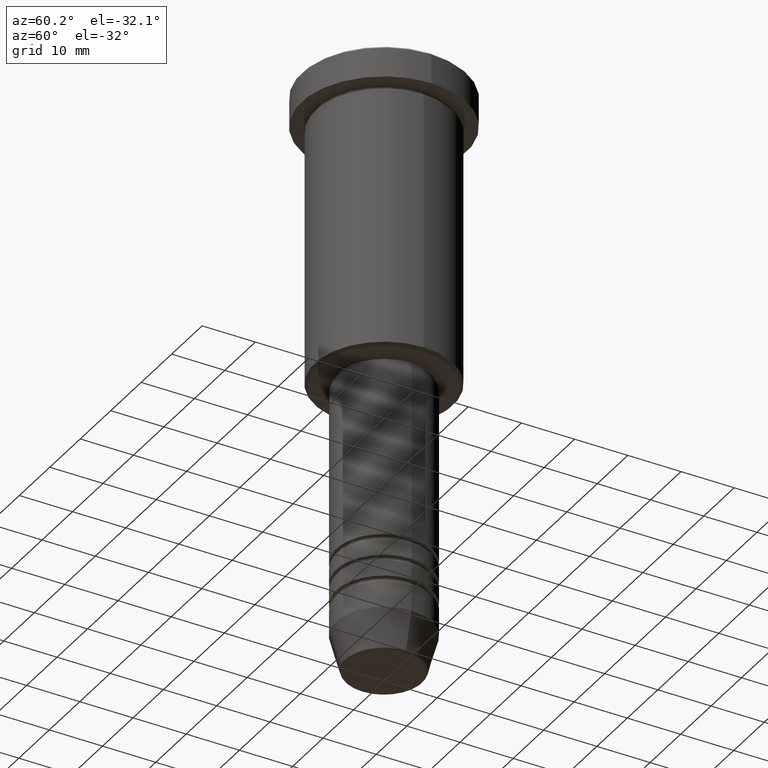
[diagram: clean part render]
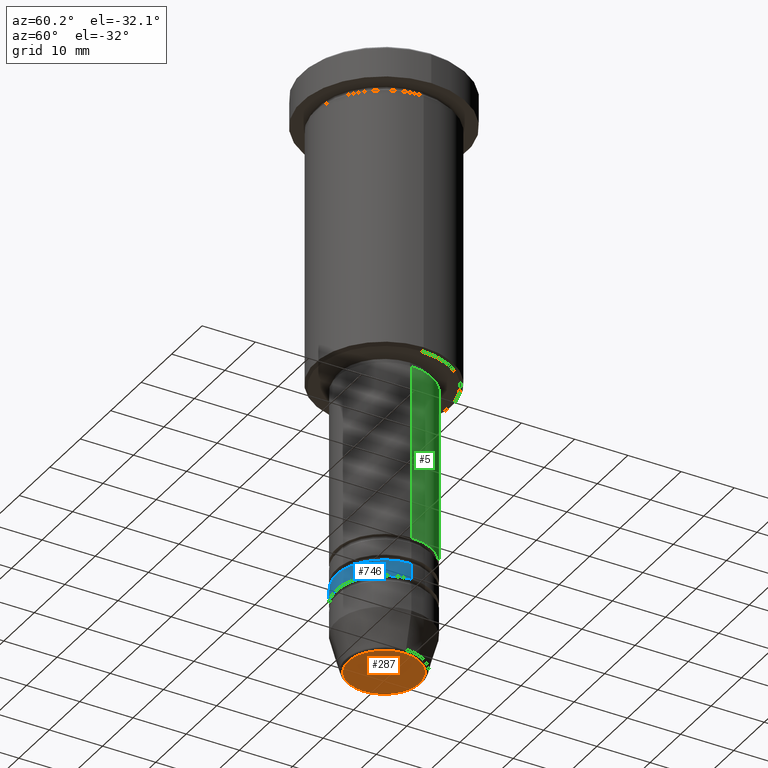
[diagram: same view with three faces highlighted in distinct colors, each labeled with its STEP entity id]
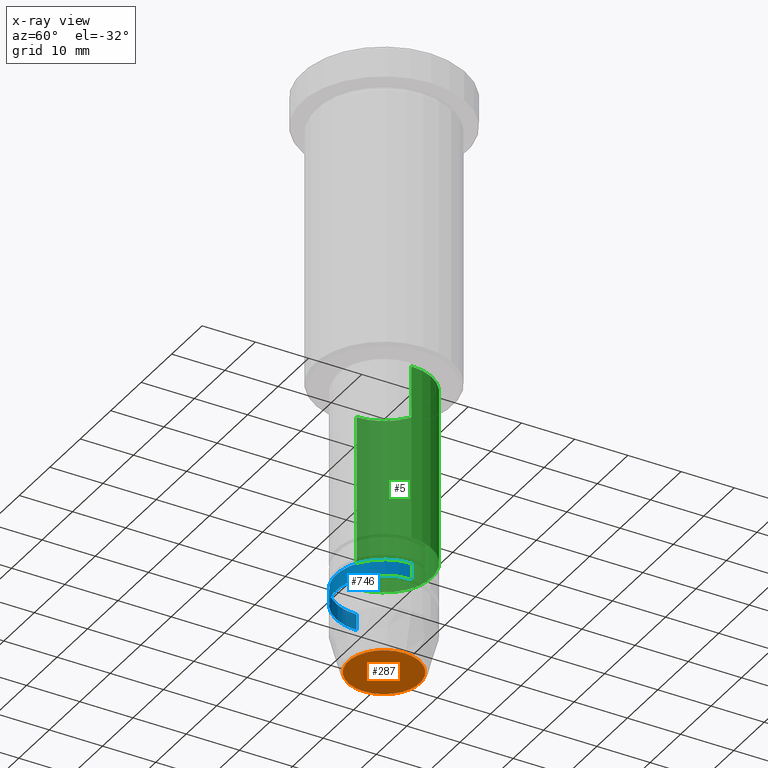
[diagram: x-ray of the same camera — body ghosted, the three highlighted faces saturated]
A machine part, auxiliary view with three faces highlighted in distinct colors.
The next image is the same camera in x-ray (body ghosted, the three faces saturated) — at least one of them is partly hidden behind the body in this view.
Their STEP definitions:

[orange] entity #287 — the highlighted planar face has unit normal (0, -0, 1).
#101 = DIRECTION ( 'NONE',  ( 1.000000000000000000, 0.000000000000000000, 0.000000000000000000 ) ) ;
#107 = DIRECTION ( 'NONE',  ( 0.000000000000000000, 0.000000000000000000, -1.000000000000000000 ) ) ;
#130 = EDGE_CURVE ( 'NONE', #683, #419, #495, .T. ) ;
#220 = AXIS2_PLACEMENT_3D ( 'NONE', #561, #1183, #101 ) ;
#285 = ORIENTED_EDGE ( 'NONE', *, *, #130, .T. ) ;
#287 = ADVANCED_FACE ( 'NONE', ( #943 ), #492, .F. ) ;
#292 = CARTESIAN_POINT ( 'NONE',  ( -6.740692158992653837, 8.550696569392682723E-16, -111.0000000000000142 ) ) ;
#419 = VERTEX_POINT ( 'NONE', #888 ) ;
#492 = PLANE ( 'NONE',  #1083 ) ;
#495 = CIRCLE ( 'NONE', #1143, 6.740692158992653837 ) ;
#526 = CIRCLE ( 'NONE', #220, 6.740692158992653837 ) ;
#561 = CARTESIAN_POINT ( 'NONE',  ( 0.000000000000000000, 0.000000000000000000, -111.0000000000000142 ) ) ;
#584 = DIRECTION ( 'NONE',  ( 0.000000000000000000, -0.000000000000000000, 1.000000000000000000 ) ) ;
#683 = VERTEX_POINT ( 'NONE', #292 ) ;
#713 = EDGE_LOOP ( 'NONE', ( #1047, #285 ) ) ;
#752 = CARTESIAN_POINT ( 'NONE',  ( 0.000000000000000000, 0.000000000000000000, -111.0000000000000142 ) ) ;
#888 = CARTESIAN_POINT ( 'NONE',  ( 6.740692158992653837, 0.000000000000000000, -111.0000000000000142 ) ) ;
#919 = CARTESIAN_POINT ( 'NONE',  ( 0.000000000000000000, 0.000000000000000000, -111.0000000000000142 ) ) ;
#937 = DIRECTION ( 'NONE',  ( 1.000000000000000000, 0.000000000000000000, 0.000000000000000000 ) ) ;
#943 = FACE_OUTER_BOUND ( 'NONE', #713, .T. ) ;
#1047 = ORIENTED_EDGE ( 'NONE', *, *, #1154, .T. ) ;
#1083 = AXIS2_PLACEMENT_3D ( 'NONE', #752, #584, #937 ) ;
#1101 = DIRECTION ( 'NONE',  ( 1.000000000000000000, 0.000000000000000000, 0.000000000000000000 ) ) ;
#1143 = AXIS2_PLACEMENT_3D ( 'NONE', #919, #107, #1101 ) ;
#1154 = EDGE_CURVE ( 'NONE', #419, #683, #526, .T. ) ;
#1183 = DIRECTION ( 'NONE',  ( 0.000000000000000000, 0.000000000000000000, -1.000000000000000000 ) ) ;

[blue] entity #746 — the highlighted cylindrical surface (partial cylindrical patch) has radius 9 mm, axis along (-0, -0, 1).
#44 = DIRECTION ( 'NONE',  ( -0.000000000000000000, -0.000000000000000000, 1.000000000000000000 ) ) ;
#127 = CARTESIAN_POINT ( 'NONE',  ( 9.000000000000001776, 0.000000000000000000, 0.000000000000000000 ) ) ;
#137 = ORIENTED_EDGE ( 'NONE', *, *, #381, .F. ) ;
#197 = CARTESIAN_POINT ( 'NONE',  ( 0.000000000000000000, 0.000000000000000000, 0.000000000000000000 ) ) ;
#280 = CARTESIAN_POINT ( 'NONE',  ( -9.000000000000001776, 1.102182119232617911E-15, -97.99999999999988631 ) ) ;
#312 = AXIS2_PLACEMENT_3D ( 'NONE', #583, #44, #930 ) ;
#328 = CARTESIAN_POINT ( 'NONE',  ( 9.000000000000000000, 0.000000000000000000, -94.99999999999988631 ) ) ;
#336 = VECTOR ( 'NONE', #856, 1000.000000000000000 ) ;
#338 = LINE ( 'NONE', #435, #1105 ) ;
#381 = EDGE_CURVE ( 'NONE', #494, #1179, #338, .T. ) ;
#391 = DIRECTION ( 'NONE',  ( -0.000000000000000000, -0.000000000000000000, 1.000000000000000000 ) ) ;
#435 = CARTESIAN_POINT ( 'NONE',  ( -9.000000000000001776, 1.102182119232617911E-15, 0.000000000000000000 ) ) ;
#463 = VERTEX_POINT ( 'NONE', #603 ) ;
#494 = VERTEX_POINT ( 'NONE', #280 ) ;
#506 = AXIS2_PLACEMENT_3D ( 'NONE', #197, #391, #1118 ) ;
#566 = DIRECTION ( 'NONE',  ( -0.000000000000000000, -0.000000000000000000, 1.000000000000000000 ) ) ;
#583 = CARTESIAN_POINT ( 'NONE',  ( 0.000000000000000000, 0.000000000000000000, -94.99999999999988631 ) ) ;
#603 = CARTESIAN_POINT ( 'NONE',  ( 9.000000000000001776, 0.000000000000000000, -97.99999999999988631 ) ) ;
#641 = EDGE_CURVE ( 'NONE', #463, #944, #1110, .T. ) ;
#646 = CARTESIAN_POINT ( 'NONE',  ( -9.000000000000000000, 1.102182119232617714E-15, -94.99999999999988631 ) ) ;
#652 = FACE_OUTER_BOUND ( 'NONE', #658, .T. ) ;
#658 = EDGE_LOOP ( 'NONE', ( #137, #707, #1035, #789 ) ) ;
#699 = EDGE_CURVE ( 'NONE', #494, #463, #1073, .T. ) ;
#707 = ORIENTED_EDGE ( 'NONE', *, *, #699, .T. ) ;
#715 = EDGE_CURVE ( 'NONE', #1179, #944, #747, .T. ) ;
#746 = ADVANCED_FACE ( 'NONE', ( #652 ), #1016, .T. ) ;
#747 = CIRCLE ( 'NONE', #312, 9.000000000000000000 ) ;
#789 = ORIENTED_EDGE ( 'NONE', *, *, #715, .F. ) ;
#849 = CARTESIAN_POINT ( 'NONE',  ( 0.000000000000000000, 0.000000000000000000, -97.99999999999988631 ) ) ;
#856 = DIRECTION ( 'NONE',  ( -0.000000000000000000, -0.000000000000000000, 1.000000000000000000 ) ) ;
#930 = DIRECTION ( 'NONE',  ( 1.000000000000000000, 0.000000000000000000, 0.000000000000000000 ) ) ;
#944 = VERTEX_POINT ( 'NONE', #328 ) ;
#1016 = CYLINDRICAL_SURFACE ( 'NONE', #506, 9.000000000000001776 ) ;
#1035 = ORIENTED_EDGE ( 'NONE', *, *, #641, .T. ) ;
#1062 = DIRECTION ( 'NONE',  ( -0.000000000000000000, -0.000000000000000000, 1.000000000000000000 ) ) ;
#1073 = CIRCLE ( 'NONE', #1111, 9.000000000000001776 ) ;
#1105 = VECTOR ( 'NONE', #1062, 1000.000000000000000 ) ;
#1110 = LINE ( 'NONE', #127, #336 ) ;
#1111 = AXIS2_PLACEMENT_3D ( 'NONE', #849, #566, #1129 ) ;
#1118 = DIRECTION ( 'NONE',  ( 1.000000000000000000, 0.000000000000000000, 0.000000000000000000 ) ) ;
#1129 = DIRECTION ( 'NONE',  ( 1.000000000000000000, 0.000000000000000000, 0.000000000000000000 ) ) ;
#1179 = VERTEX_POINT ( 'NONE', #646 ) ;

[green] entity #5 — the highlighted cylindrical surface (partial cylindrical patch) has radius 9 mm, axis along (-0, -0, 1).
#5 = ADVANCED_FACE ( 'NONE', ( #60 ), #687, .T. ) ;
#7 = CARTESIAN_POINT ( 'NONE',  ( 9.000000000000000000, 0.000000000000000000, 0.000000000000000000 ) ) ;
#17 = VECTOR ( 'NONE', #548, 1000.000000000000000 ) ;
#50 = AXIS2_PLACEMENT_3D ( 'NONE', #323, #680, #421 ) ;
#60 = FACE_OUTER_BOUND ( 'NONE', #221, .T. ) ;
#63 = VERTEX_POINT ( 'NONE', #1005 ) ;
#67 = CIRCLE ( 'NONE', #50, 8.999999999999998224 ) ;
#80 = ORIENTED_EDGE ( 'NONE', *, *, #155, .T. ) ;
#116 = DIRECTION ( 'NONE',  ( -0.000000000000000000, -0.000000000000000000, 1.000000000000000000 ) ) ;
#155 = EDGE_CURVE ( 'NONE', #375, #818, #1081, .T. ) ;
#158 = DIRECTION ( 'NONE',  ( -0.000000000000000000, -0.000000000000000000, 1.000000000000000000 ) ) ;
#216 = CARTESIAN_POINT ( 'NONE',  ( 0.000000000000000000, 0.000000000000000000, -89.99999999999990052 ) ) ;
#221 = EDGE_LOOP ( 'NONE', ( #602, #80, #926, #631 ) ) ;
#229 = VERTEX_POINT ( 'NONE', #1040 ) ;
#323 = CARTESIAN_POINT ( 'NONE',  ( 0.000000000000000000, 0.000000000000000000, -56.99999999999998579 ) ) ;
#375 = VERTEX_POINT ( 'NONE', #864 ) ;
#409 = CARTESIAN_POINT ( 'NONE',  ( -8.999999999999998224, 1.102182119232617714E-15, -56.99999999999998579 ) ) ;
#421 = DIRECTION ( 'NONE',  ( 1.000000000000000000, 0.000000000000000000, 0.000000000000000000 ) ) ;
#450 = DIRECTION ( 'NONE',  ( -0.000000000000000000, -0.000000000000000000, 1.000000000000000000 ) ) ;
#537 = DIRECTION ( 'NONE',  ( 1.000000000000000000, 0.000000000000000000, 0.000000000000000000 ) ) ;
#548 = DIRECTION ( 'NONE',  ( -0.000000000000000000, -0.000000000000000000, 1.000000000000000000 ) ) ;
#575 = EDGE_CURVE ( 'NONE', #229, #63, #1090, .T. ) ;
#602 = ORIENTED_EDGE ( 'NONE', *, *, #628, .T. ) ;
#624 = CARTESIAN_POINT ( 'NONE',  ( 0.000000000000000000, 0.000000000000000000, 0.000000000000000000 ) ) ;
#628 = EDGE_CURVE ( 'NONE', #229, #375, #694, .T. ) ;
#631 = ORIENTED_EDGE ( 'NONE', *, *, #575, .F. ) ;
#680 = DIRECTION ( 'NONE',  ( -0.000000000000000000, -0.000000000000000000, 1.000000000000000000 ) ) ;
#687 = CYLINDRICAL_SURFACE ( 'NONE', #1044, 9.000000000000000000 ) ;
#694 = CIRCLE ( 'NONE', #844, 9.000000000000001776 ) ;
#758 = VECTOR ( 'NONE', #450, 1000.000000000000000 ) ;
#782 = EDGE_CURVE ( 'NONE', #63, #818, #67, .T. ) ;
#818 = VERTEX_POINT ( 'NONE', #409 ) ;
#844 = AXIS2_PLACEMENT_3D ( 'NONE', #216, #116, #936 ) ;
#864 = CARTESIAN_POINT ( 'NONE',  ( -9.000000000000001776, 1.102182119232617911E-15, -89.99999999999990052 ) ) ;
#900 = CARTESIAN_POINT ( 'NONE',  ( -9.000000000000000000, 1.102182119232617714E-15, 0.000000000000000000 ) ) ;
#926 = ORIENTED_EDGE ( 'NONE', *, *, #782, .F. ) ;
#936 = DIRECTION ( 'NONE',  ( 1.000000000000000000, 0.000000000000000000, 0.000000000000000000 ) ) ;
#1005 = CARTESIAN_POINT ( 'NONE',  ( 8.999999999999998224, 0.000000000000000000, -56.99999999999998579 ) ) ;
#1040 = CARTESIAN_POINT ( 'NONE',  ( 9.000000000000001776, 0.000000000000000000, -89.99999999999990052 ) ) ;
#1044 = AXIS2_PLACEMENT_3D ( 'NONE', #624, #158, #537 ) ;
#1081 = LINE ( 'NONE', #900, #17 ) ;
#1090 = LINE ( 'NONE', #7, #758 ) ;